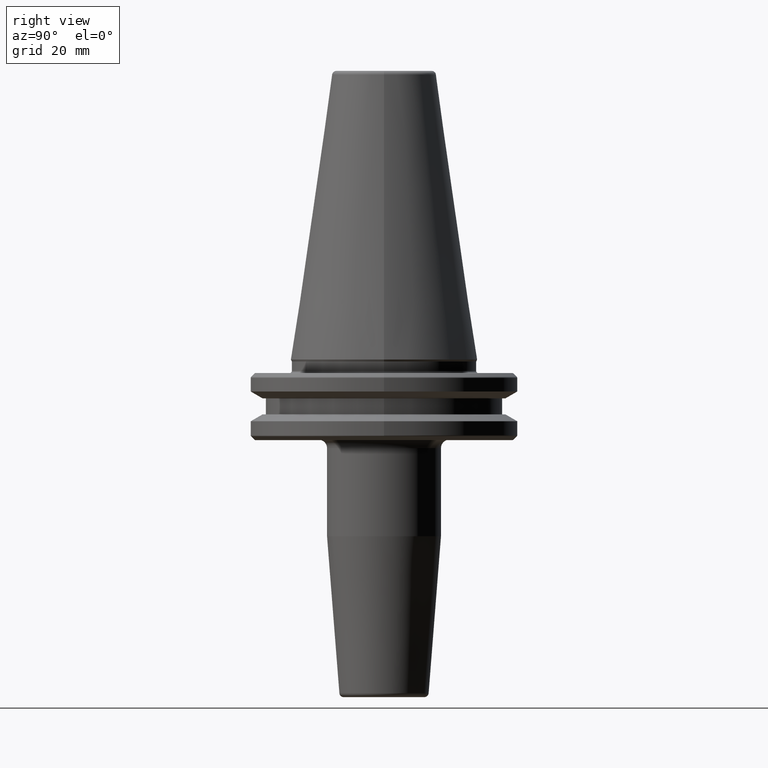
[diagram: clean part render]
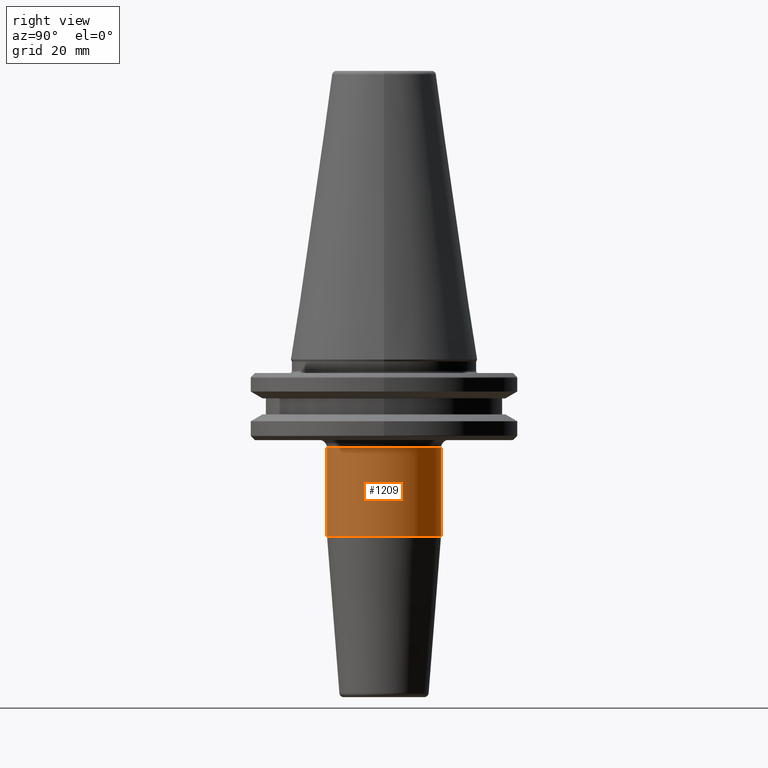
[diagram: same view with one face highlighted and labeled with its STEP entity id]
A machine part, right view. The second image highlights one B-rep face of the part: STEP entity #1209.
In plain terms, the highlighted cylindrical surface (partial cylindrical patch) has radius 13.5 mm, axis along (-0, 0, -1).
Its self-contained STEP definition (entity closure, byte-faithful):
#57 = FACE_OUTER_BOUND ( 'NONE', #1230, .T. ) ;
#82 = VECTOR ( 'NONE', #901, 1000.000000000000000 ) ;
#93 = DIRECTION ( 'NONE',  ( -0.0000000000000000000, 2.829168385244881300E-016, -1.000000000000000000 ) ) ;
#112 = VERTEX_POINT ( 'NONE', #973 ) ;
#162 = EDGE_CURVE ( 'NONE', #1244, #112, #968, .T. ) ;
#258 = EDGE_CURVE ( 'NONE', #1244, #947, #599, .T. ) ;
#277 = CYLINDRICAL_SURFACE ( 'NONE', #1097, 13.50000000000002700 ) ;
#373 = CARTESIAN_POINT ( 'NONE',  ( 1.653273178848929800E-015, -13.50000000000002700, -80.00000000000000000 ) ) ;
#414 = VERTEX_POINT ( 'NONE', #586 ) ;
#417 = CARTESIAN_POINT ( 'NONE',  ( 0.0000000000000000000, 13.50000000000002700, -80.00000000000000000 ) ) ;
#455 = EDGE_CURVE ( 'NONE', #947, #414, #986, .T. ) ;
#457 = ORIENTED_EDGE ( 'NONE', *, *, #455, .F. ) ;
#465 = DIRECTION ( 'NONE',  ( -0.0000000000000000000, 2.829168385244881300E-016, -1.000000000000000000 ) ) ;
#468 = AXIS2_PLACEMENT_3D ( 'NONE', #1208, #810, #912 ) ;
#511 = CARTESIAN_POINT ( 'NONE',  ( 1.653273178848931000E-015, 13.50000000000002500, -41.88138579147598500 ) ) ;
#579 = EDGE_CURVE ( 'NONE', #112, #414, #1093, .T. ) ;
#583 = VECTOR ( 'NONE', #93, 1000.000000000000000 ) ;
#586 = CARTESIAN_POINT ( 'NONE',  ( 0.0000000000000000000, -13.50000000000004400, -41.88138579147598500 ) ) ;
#599 = LINE ( 'NONE', #417, #82 ) ;
#650 = CARTESIAN_POINT ( 'NONE',  ( 0.0000000000000000000, -6.839794164568140200E-018, -80.00000000000000000 ) ) ;
#690 = DIRECTION ( 'NONE',  ( 0.0000000000000000000, 1.000000000000000000, 2.569960705150821900E-016 ) ) ;
#755 = DIRECTION ( 'NONE',  ( 0.0000000000000000000, 1.000000000000000000, 0.0000000000000000000 ) ) ;
#810 = DIRECTION ( 'NONE',  ( -0.0000000000000000000, 2.829168385244881300E-016, -1.000000000000000000 ) ) ;
#872 = ORIENTED_EDGE ( 'NONE', *, *, #258, .F. ) ;
#877 = DIRECTION ( 'NONE',  ( -0.0000000000000000000, 2.829168385244881300E-016, -1.000000000000000000 ) ) ;
#901 = DIRECTION ( 'NONE',  ( -0.0000000000000000000, 2.829168385244881300E-016, -1.000000000000000000 ) ) ;
#912 = DIRECTION ( 'NONE',  ( 0.0000000000000000000, 1.000000000000000000, 5.139921410301638000E-016 ) ) ;
#947 = VERTEX_POINT ( 'NONE', #511 ) ;
#963 = CARTESIAN_POINT ( 'NONE',  ( 0.0000000000000000000, 13.50000000000000000, -20.98284271247461100 ) ) ;
#968 = CIRCLE ( 'NONE', #1236, 13.50000000000001800 ) ;
#973 = CARTESIAN_POINT ( 'NONE',  ( 1.653273178848929600E-015, -13.50000000000003400, -20.98284271247461800 ) ) ;
#986 = CIRCLE ( 'NONE', #468, 13.50000000000003400 ) ;
#1093 = LINE ( 'NONE', #373, #583 ) ;
#1097 = AXIS2_PLACEMENT_3D ( 'NONE', #650, #465, #755 ) ;
#1137 = ORIENTED_EDGE ( 'NONE', *, *, #162, .T. ) ;
#1178 = CARTESIAN_POINT ( 'NONE',  ( 0.0000000000000000000, -1.670378735265370500E-014, -20.98284271247461400 ) ) ;
#1208 = CARTESIAN_POINT ( 'NONE',  ( 0.0000000000000000000, -1.079123761497481700E-014, -41.88138579147598500 ) ) ;
#1209 = ADVANCED_FACE ( 'NONE', ( #57 ), #277, .T. ) ;
#1230 = EDGE_LOOP ( 'NONE', ( #1137, #1247, #457, #872 ) ) ;
#1236 = AXIS2_PLACEMENT_3D ( 'NONE', #1178, #877, #690 ) ;
#1244 = VERTEX_POINT ( 'NONE', #963 ) ;
#1247 = ORIENTED_EDGE ( 'NONE', *, *, #579, .T. ) ;